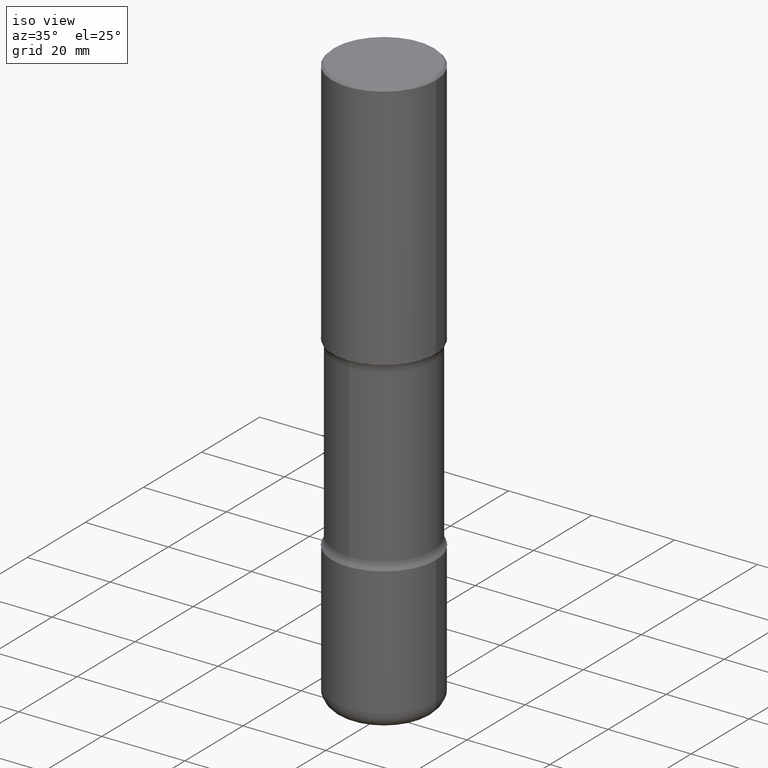
[diagram: clean part render]
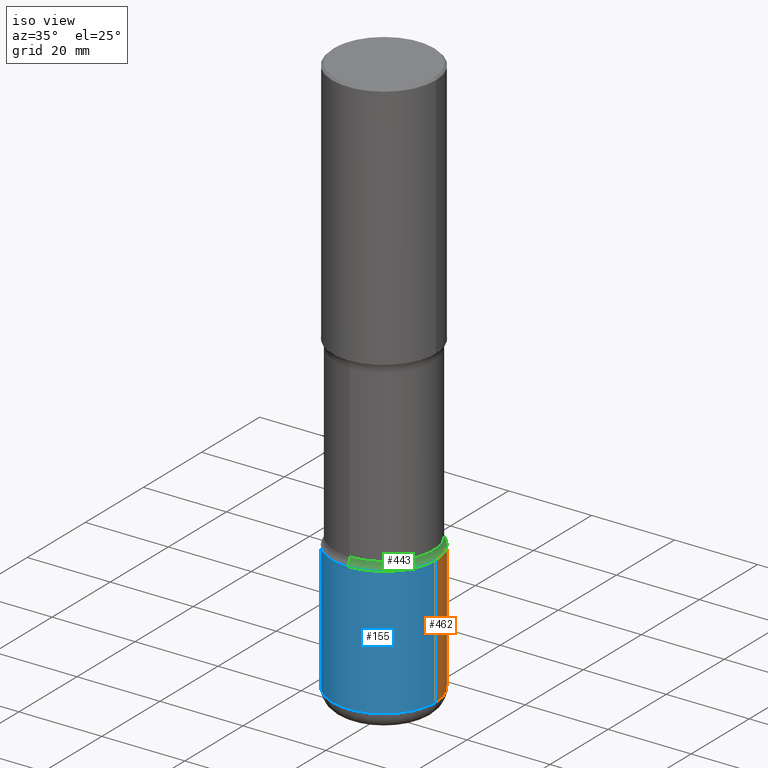
[diagram: same view with three faces highlighted in distinct colors, each labeled with its STEP entity id]
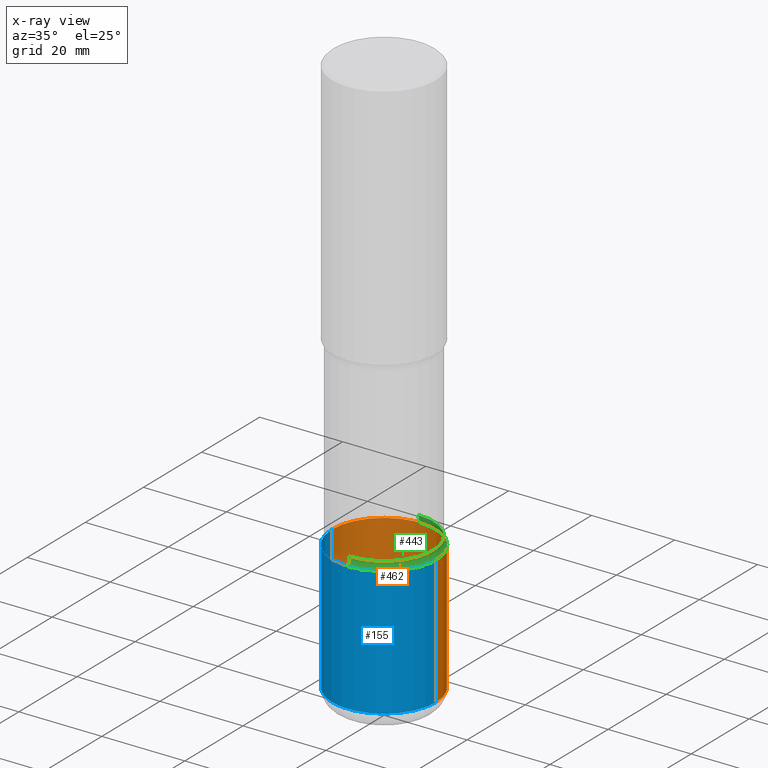
[diagram: x-ray of the same camera — body ghosted, the three highlighted faces saturated]
A machine part, iso view with three faces highlighted in distinct colors.
The next image is the same camera in x-ray (body ghosted, the three faces saturated) — at least one of them is partly hidden behind the body in this view.
Their STEP definitions:

[orange] entity #462 — the highlighted cylindrical surface (partial cylindrical patch) has radius 12.5006 mm, axis along (-0, 0, 1).
#1 = LINE ( 'NONE', #213, #54 ) ;
#4 = VERTEX_POINT ( 'NONE', #79 ) ;
#12 = AXIS2_PLACEMENT_3D ( 'NONE', #103, #187, #309 ) ;
#54 = VECTOR ( 'NONE', #248, 39.37007874015748143 ) ;
#66 = CYLINDRICAL_SURFACE ( 'NONE', #326, 0.4921500000000002539 ) ;
#79 = CARTESIAN_POINT ( 'NONE',  ( 0.4921500000000002539, -2.213110361439115437E-14, -5.354300000000000281 ) ) ;
#103 = CARTESIAN_POINT ( 'NONE',  ( 1.010907895100811684E-28, -1.443308555850979562E-14, -4.133799999999999919 ) ) ;
#106 = DIRECTION ( 'NONE',  ( -2.445468806185136597E-29, 3.491481338843145583E-15, 1.000000000000000000 ) ) ;
#122 = EDGE_CURVE ( 'NONE', #461, #410, #1, .T. ) ;
#144 = CIRCLE ( 'NONE', #12, 0.4921500000000001984 ) ;
#146 = EDGE_LOOP ( 'NONE', ( #345, #330, #287, #553 ) ) ;
#173 = LINE ( 'NONE', #344, #278 ) ;
#187 = DIRECTION ( 'NONE',  ( -2.445468806185136597E-29, 3.491481338843145583E-15, 1.000000000000000000 ) ) ;
#213 = CARTESIAN_POINT ( 'NONE',  ( -0.4921500000000002539, 3.496936074043334869E-15, -2.420853904668952910E-29 ) ) ;
#219 = CARTESIAN_POINT ( 'NONE',  ( 0.000000000000000000, 0.000000000000000000, 0.000000000000000000 ) ) ;
#228 = DIRECTION ( 'NONE',  ( 1.000000000000000000, -6.982962677686266711E-15, 4.876176775795935793E-29 ) ) ;
#233 = EDGE_CURVE ( 'NONE', #4, #322, #173, .T. ) ;
#248 = DIRECTION ( 'NONE',  ( -2.445468806185136877E-29, 3.491481338843145188E-15, 1.000000000000000000 ) ) ;
#278 = VECTOR ( 'NONE', #426, 39.37007874015748143 ) ;
#287 = ORIENTED_EDGE ( 'NONE', *, *, #447, .F. ) ;
#288 = EDGE_CURVE ( 'NONE', #4, #461, #559, .T. ) ;
#303 = DIRECTION ( 'NONE',  ( 1.000000000000000000, -6.982962677686269866E-15, 0.000000000000000000 ) ) ;
#307 = AXIS2_PLACEMENT_3D ( 'NONE', #440, #526, #303 ) ;
#309 = DIRECTION ( 'NONE',  ( 1.000000000000000000, -6.982962677686267499E-15, 0.000000000000000000 ) ) ;
#310 = FACE_OUTER_BOUND ( 'NONE', #146, .T. ) ;
#322 = VERTEX_POINT ( 'NONE', #390 ) ;
#326 = AXIS2_PLACEMENT_3D ( 'NONE', #219, #106, #228 ) ;
#330 = ORIENTED_EDGE ( 'NONE', *, *, #122, .T. ) ;
#344 = CARTESIAN_POINT ( 'NONE',  ( 0.4921500000000002539, -3.436665081823297749E-15, 2.399810400207971004E-29 ) ) ;
#345 = ORIENTED_EDGE ( 'NONE', *, *, #288, .T. ) ;
#390 = CARTESIAN_POINT ( 'NONE',  ( 0.4921500000000001984, -1.786975064033309297E-14, -4.133799999999999919 ) ) ;
#410 = VERTEX_POINT ( 'NONE', #534 ) ;
#426 = DIRECTION ( 'NONE',  ( -2.445468806185136877E-29, 3.491481338843145188E-15, 1.000000000000000000 ) ) ;
#440 = CARTESIAN_POINT ( 'NONE',  ( 1.309377362895707575E-28, -1.869443853256785386E-14, -5.354300000000000281 ) ) ;
#446 = CARTESIAN_POINT ( 'NONE',  ( -0.4921500000000002539, -1.519750245852451702E-14, -5.354300000000000281 ) ) ;
#447 = EDGE_CURVE ( 'NONE', #322, #410, #144, .T. ) ;
#461 = VERTEX_POINT ( 'NONE', #446 ) ;
#462 = ADVANCED_FACE ( 'NONE', ( #310 ), #66, .T. ) ;
#526 = DIRECTION ( 'NONE',  ( -2.445468806185136597E-29, 3.491481338843145583E-15, 1.000000000000000000 ) ) ;
#534 = CARTESIAN_POINT ( 'NONE',  ( -0.4921500000000001984, -1.306682597149549105E-14, -4.133799999999999919 ) ) ;
#553 = ORIENTED_EDGE ( 'NONE', *, *, #233, .F. ) ;
#559 = CIRCLE ( 'NONE', #307, 0.4921500000000003094 ) ;

[blue] entity #155 — the highlighted cylindrical surface (partial cylindrical patch) has radius 12.5006 mm, axis along (-0, 0, 1).
#1 = LINE ( 'NONE', #213, #54 ) ;
#4 = VERTEX_POINT ( 'NONE', #79 ) ;
#6 = EDGE_CURVE ( 'NONE', #461, #4, #110, .T. ) ;
#54 = VECTOR ( 'NONE', #248, 39.37007874015748143 ) ;
#79 = CARTESIAN_POINT ( 'NONE',  ( 0.4921500000000002539, -2.213110361439115437E-14, -5.354300000000000281 ) ) ;
#86 = FACE_OUTER_BOUND ( 'NONE', #283, .T. ) ;
#100 = CARTESIAN_POINT ( 'NONE',  ( 0.000000000000000000, 0.000000000000000000, 0.000000000000000000 ) ) ;
#110 = CIRCLE ( 'NONE', #135, 0.4921500000000003094 ) ;
#122 = EDGE_CURVE ( 'NONE', #461, #410, #1, .T. ) ;
#132 = ORIENTED_EDGE ( 'NONE', *, *, #6, .T. ) ;
#135 = AXIS2_PLACEMENT_3D ( 'NONE', #518, #251, #240 ) ;
#155 = ADVANCED_FACE ( 'NONE', ( #86 ), #436, .T. ) ;
#171 = DIRECTION ( 'NONE',  ( -2.445468806185136597E-29, 3.491481338843145583E-15, 1.000000000000000000 ) ) ;
#173 = LINE ( 'NONE', #344, #278 ) ;
#213 = CARTESIAN_POINT ( 'NONE',  ( -0.4921500000000002539, 3.496936074043334869E-15, -2.420853904668952910E-29 ) ) ;
#233 = EDGE_CURVE ( 'NONE', #4, #322, #173, .T. ) ;
#240 = DIRECTION ( 'NONE',  ( 1.000000000000000000, -6.982962677686269866E-15, 0.000000000000000000 ) ) ;
#246 = ORIENTED_EDGE ( 'NONE', *, *, #233, .T. ) ;
#248 = DIRECTION ( 'NONE',  ( -2.445468806185136877E-29, 3.491481338843145188E-15, 1.000000000000000000 ) ) ;
#250 = DIRECTION ( 'NONE',  ( 1.000000000000000000, -6.982962677686266711E-15, 4.876176775795935793E-29 ) ) ;
#251 = DIRECTION ( 'NONE',  ( -2.445468806185136597E-29, 3.491481338843145583E-15, 1.000000000000000000 ) ) ;
#266 = AXIS2_PLACEMENT_3D ( 'NONE', #100, #171, #250 ) ;
#278 = VECTOR ( 'NONE', #426, 39.37007874015748143 ) ;
#283 = EDGE_LOOP ( 'NONE', ( #291, #132, #246, #380 ) ) ;
#291 = ORIENTED_EDGE ( 'NONE', *, *, #122, .F. ) ;
#322 = VERTEX_POINT ( 'NONE', #390 ) ;
#344 = CARTESIAN_POINT ( 'NONE',  ( 0.4921500000000002539, -3.436665081823297749E-15, 2.399810400207971004E-29 ) ) ;
#352 = DIRECTION ( 'NONE',  ( -2.445468806185136597E-29, 3.491481338843145583E-15, 1.000000000000000000 ) ) ;
#369 = CIRCLE ( 'NONE', #382, 0.4921500000000001984 ) ;
#380 = ORIENTED_EDGE ( 'NONE', *, *, #438, .F. ) ;
#382 = AXIS2_PLACEMENT_3D ( 'NONE', #479, #352, #525 ) ;
#390 = CARTESIAN_POINT ( 'NONE',  ( 0.4921500000000001984, -1.786975064033309297E-14, -4.133799999999999919 ) ) ;
#410 = VERTEX_POINT ( 'NONE', #534 ) ;
#426 = DIRECTION ( 'NONE',  ( -2.445468806185136877E-29, 3.491481338843145188E-15, 1.000000000000000000 ) ) ;
#436 = CYLINDRICAL_SURFACE ( 'NONE', #266, 0.4921500000000002539 ) ;
#438 = EDGE_CURVE ( 'NONE', #410, #322, #369, .T. ) ;
#446 = CARTESIAN_POINT ( 'NONE',  ( -0.4921500000000002539, -1.519750245852451702E-14, -5.354300000000000281 ) ) ;
#461 = VERTEX_POINT ( 'NONE', #446 ) ;
#479 = CARTESIAN_POINT ( 'NONE',  ( 1.010907895100811684E-28, -1.443308555850979562E-14, -4.133799999999999919 ) ) ;
#518 = CARTESIAN_POINT ( 'NONE',  ( 1.309377362895707575E-28, -1.869443853256785386E-14, -5.354300000000000281 ) ) ;
#525 = DIRECTION ( 'NONE',  ( 1.000000000000000000, -6.982962677686267499E-15, 0.000000000000000000 ) ) ;
#534 = CARTESIAN_POINT ( 'NONE',  ( -0.4921500000000001984, -1.306682597149549105E-14, -4.133799999999999919 ) ) ;

[green] entity #443 — the highlighted toroidal blend (fillet) surface has major radius 15.0495 mm and minor (blend) radius 3.175 mm.
#3 = CARTESIAN_POINT ( 'NONE',  ( -3.291838451780624866E-15, -0.4675000000000141265, -4.059268949423745276 ) ) ;
#8 = EDGE_CURVE ( 'NONE', #421, #188, #152, .T. ) ;
#17 = CIRCLE ( 'NONE', #355, 0.1250000000000001110 ) ;
#22 = DIRECTION ( 'NONE',  ( 1.000000000000000000, -6.860497997771530774E-15, 4.842265841865007537E-29 ) ) ;
#23 = VERTEX_POINT ( 'NONE', #102 ) ;
#41 = EDGE_CURVE ( 'NONE', #541, #23, #17, .T. ) ;
#46 = AXIS2_PLACEMENT_3D ( 'NONE', #520, #557, #295 ) ;
#50 = ORIENTED_EDGE ( 'NONE', *, *, #8, .F. ) ;
#67 = AXIS2_PLACEMENT_3D ( 'NONE', #418, #22, #366 ) ;
#95 = ORIENTED_EDGE ( 'NONE', *, *, #245, .T. ) ;
#102 = CARTESIAN_POINT ( 'NONE',  ( 3.264535051818428216E-15, 0.4674999999999857048, -4.059268949423747941 ) ) ;
#112 = TOROIDAL_SURFACE ( 'NONE', #503, 0.5925000000000001377, 0.1250000000000001110 ) ;
#120 = CARTESIAN_POINT ( 'NONE',  ( 4.137405386529212738E-15, 0.5924999999999858158, -4.059268949423748829 ) ) ;
#121 = ORIENTED_EDGE ( 'NONE', *, *, #41, .T. ) ;
#139 = DIRECTION ( 'NONE',  ( 2.529115312138246887E-29, -3.371694781454833941E-15, -1.000000000000000000 ) ) ;
#147 = FACE_OUTER_BOUND ( 'NONE', #433, .T. ) ;
#152 = CIRCLE ( 'NONE', #67, 0.1250000000000001110 ) ;
#182 = CIRCLE ( 'NONE', #373, 0.4921500000000001984 ) ;
#188 = VERTEX_POINT ( 'NONE', #3 ) ;
#216 = DIRECTION ( 'NONE',  ( 6.982962677686266711E-15, 1.000000000000000000, -3.330506545156064679E-15 ) ) ;
#221 = CARTESIAN_POINT ( 'NONE',  ( 9.879124610279509049E-29, -1.424115798610003816E-14, -4.059268949423747053 ) ) ;
#245 = EDGE_CURVE ( 'NONE', #23, #188, #419, .T. ) ;
#257 = CARTESIAN_POINT ( 'NONE',  ( -3.376394089603158865E-15, -0.4921500000000145758, -4.133799999999998143 ) ) ;
#264 = DIRECTION ( 'NONE',  ( 6.982962677686265133E-15, 1.000000000000000000, -3.371694781454833546E-15 ) ) ;
#295 = DIRECTION ( 'NONE',  ( 6.982962677686266711E-15, 1.000000000000000000, -3.506115072082477581E-15 ) ) ;
#349 = CARTESIAN_POINT ( 'NONE',  ( 1.010907895100811684E-28, -1.443308555850979562E-14, -4.133799999999999919 ) ) ;
#355 = AXIS2_PLACEMENT_3D ( 'NONE', #120, #417, #374 ) ;
#366 = DIRECTION ( 'NONE',  ( 6.860497997771531562E-15, 1.000000000000000000, 0.000000000000000000 ) ) ;
#373 = AXIS2_PLACEMENT_3D ( 'NONE', #349, #530, #216 ) ;
#374 = DIRECTION ( 'NONE',  ( -6.982962677686264344E-15, -1.000000000000000000, 0.000000000000000000 ) ) ;
#417 = DIRECTION ( 'NONE',  ( -1.000000000000000000, 6.982962677686265922E-15, -4.883557194083112340E-29 ) ) ;
#418 = CARTESIAN_POINT ( 'NONE',  ( -4.064845063679533496E-15, -0.5925000000000143485, -4.059268949423744388 ) ) ;
#419 = CIRCLE ( 'NONE', #46, 0.4674999999999999156 ) ;
#421 = VERTEX_POINT ( 'NONE', #257 ) ;
#432 = EDGE_CURVE ( 'NONE', #541, #421, #182, .T. ) ;
#433 = EDGE_LOOP ( 'NONE', ( #50, #558, #121, #95 ) ) ;
#443 = ADVANCED_FACE ( 'NONE', ( #147 ), #112, .F. ) ;
#444 = CARTESIAN_POINT ( 'NONE',  ( 3.436665081823398329E-15, 0.4921499999999857100, -4.133800000000001695 ) ) ;
#503 = AXIS2_PLACEMENT_3D ( 'NONE', #221, #139, #264 ) ;
#520 = CARTESIAN_POINT ( 'NONE',  ( 9.920581329765965517E-29, -1.418178960422549608E-14, -4.059268949423747053 ) ) ;
#530 = DIRECTION ( 'NONE',  ( 2.529115312138246887E-29, -3.371694781454833941E-15, -1.000000000000000000 ) ) ;
#541 = VERTEX_POINT ( 'NONE', #444 ) ;
#557 = DIRECTION ( 'NONE',  ( 2.529115312138246887E-29, -3.371694781454833941E-15, -1.000000000000000000 ) ) ;
#558 = ORIENTED_EDGE ( 'NONE', *, *, #432, .F. ) ;